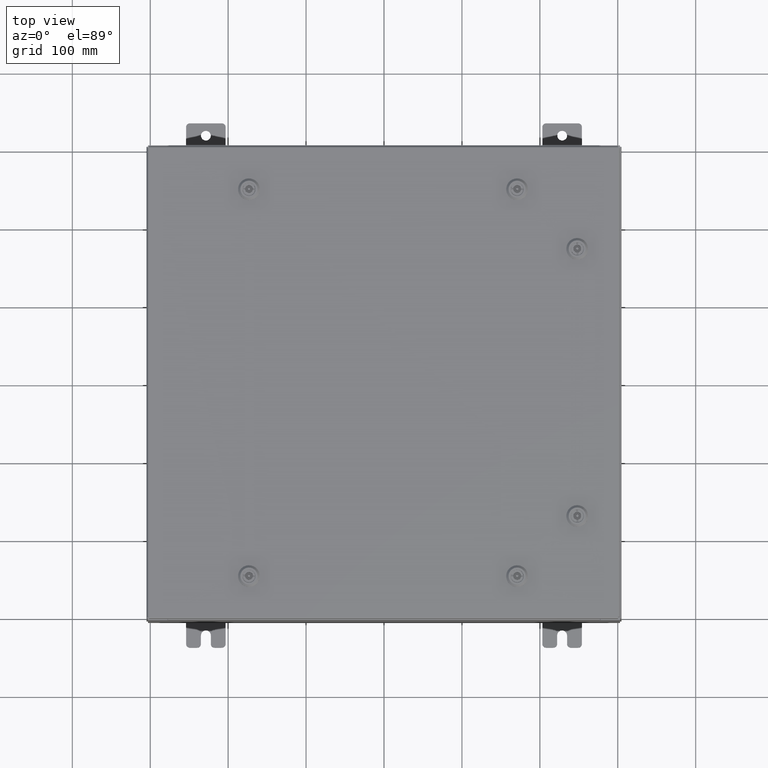
[diagram: clean part render]
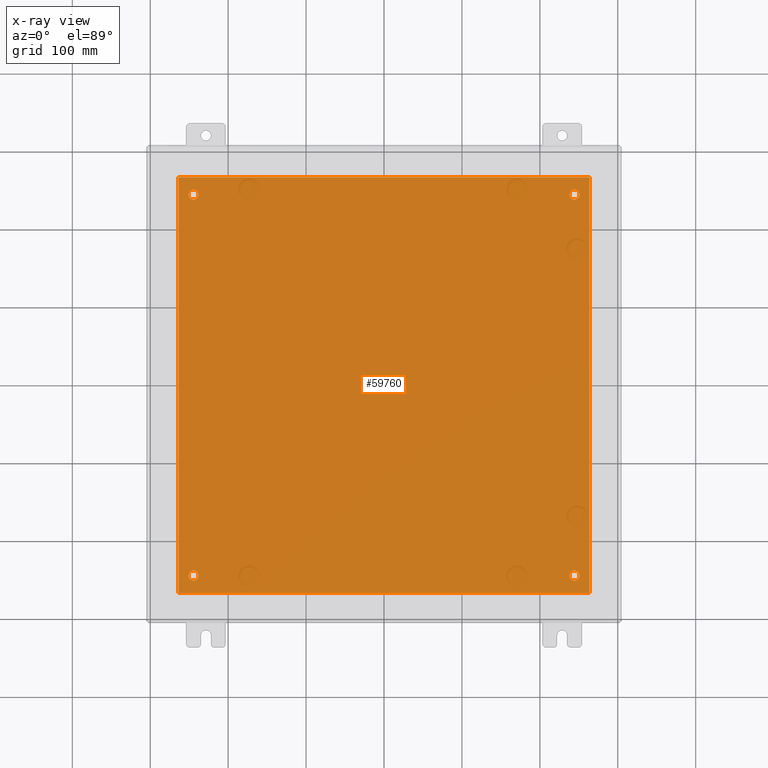
[diagram: x-ray — body ghosted, one internal face saturated and labeled with its STEP entity id]
A machine part, top view, then the same camera in x-ray: the body is ghosted and one INTERNAL B-rep face — a face not visible from any outside direction — is saturated and labeled: STEP entity #59760.
In plain terms, the highlighted planar face has unit normal (0, 0, -1).
Its self-contained STEP definition (entity closure, byte-faithful):
#550 = AXIS2_PLACEMENT_3D ( 'NONE', #13886, #22207, #44751 ) ;
#1883 = VECTOR ( 'NONE', #3053, 39.37007874015748100 ) ;
#1995 = VECTOR ( 'NONE', #28978, 39.37007874015748100 ) ;
#2280 = CARTESIAN_POINT ( 'NONE',  ( 9.625000000000005300, -9.625000000000001800, -0.1039999999999999800 ) ) ;
#2827 = VERTEX_POINT ( 'NONE', #28022 ) ;
#3053 = DIRECTION ( 'NONE',  ( -1.000000000000000000, -0.0000000000000000000, -0.0000000000000000000 ) ) ;
#3191 = CIRCLE ( 'NONE', #550, 0.2499999999999987000 ) ;
#3329 = CIRCLE ( 'NONE', #7143, 0.2499999999999976100 ) ;
#3527 = DIRECTION ( 'NONE',  ( 0.0000000000000000000, 0.0000000000000000000, -1.000000000000000000 ) ) ;
#4261 = EDGE_CURVE ( 'NONE', #62929, #2827, #59238, .T. ) ;
#5154 = ORIENTED_EDGE ( 'NONE', *, *, #36373, .F. ) ;
#6107 = EDGE_CURVE ( 'NONE', #2827, #62929, #3191, .T. ) ;
#6912 = VERTEX_POINT ( 'NONE', #55857 ) ;
#7143 = AXIS2_PLACEMENT_3D ( 'NONE', #15414, #49762, #20341 ) ;
#7188 = DIRECTION ( 'NONE',  ( -1.000000000000000000, 0.0000000000000000000, 0.0000000000000000000 ) ) ;
#8154 = VERTEX_POINT ( 'NONE', #35772 ) ;
#8735 = DIRECTION ( 'NONE',  ( -0.0000000000000000000, -0.0000000000000000000, 1.000000000000000000 ) ) ;
#9283 = EDGE_CURVE ( 'NONE', #45121, #58195, #62035, .T. ) ;
#9945 = CIRCLE ( 'NONE', #15931, 0.2499999999999976100 ) ;
#10018 = ORIENTED_EDGE ( 'NONE', *, *, #9283, .F. ) ;
#10970 = AXIS2_PLACEMENT_3D ( 'NONE', #32898, #3527, #37848 ) ;
#10999 = ORIENTED_EDGE ( 'NONE', *, *, #4261, .T. ) ;
#11457 = ORIENTED_EDGE ( 'NONE', *, *, #25957, .T. ) ;
#12638 = ORIENTED_EDGE ( 'NONE', *, *, #58303, .F. ) ;
#13877 = FACE_BOUND ( 'NONE', #25393, .T. ) ;
#13886 = CARTESIAN_POINT ( 'NONE',  ( -9.625000000000005300, 9.625000000000001800, -0.1039999999999999800 ) ) ;
#13932 = VERTEX_POINT ( 'NONE', #29585 ) ;
#14870 = LINE ( 'NONE', #47016, #1883 ) ;
#14983 = LINE ( 'NONE', #63258, #1995 ) ;
#15414 = CARTESIAN_POINT ( 'NONE',  ( 9.625000000000005300, -9.625000000000001800, -0.1039999999999999800 ) ) ;
#15931 = AXIS2_PLACEMENT_3D ( 'NONE', #2280, #36579, #7188 ) ;
#18669 = DIRECTION ( 'NONE',  ( -0.0000000000000000000, -0.0000000000000000000, 1.000000000000000000 ) ) ;
#18864 = EDGE_CURVE ( 'NONE', #39711, #50297, #60272, .T. ) ;
#18925 = DIRECTION ( 'NONE',  ( -0.0000000000000000000, -0.0000000000000000000, 1.000000000000000000 ) ) ;
#19144 = AXIS2_PLACEMENT_3D ( 'NONE', #19498, #53825, #24448 ) ;
#19498 = CARTESIAN_POINT ( 'NONE',  ( 9.625000000000005300, 9.625000000000001800, -0.1039999999999999800 ) ) ;
#20341 = DIRECTION ( 'NONE',  ( -1.000000000000000000, 0.0000000000000000000, 0.0000000000000000000 ) ) ;
#21442 = CIRCLE ( 'NONE', #19144, 0.2499999999999976100 ) ;
#22207 = DIRECTION ( 'NONE',  ( -0.0000000000000000000, -0.0000000000000000000, 1.000000000000000000 ) ) ;
#22558 = CARTESIAN_POINT ( 'NONE',  ( -9.875000000000005300, 9.625000000000001800, -0.1039999999999999800 ) ) ;
#22886 = VECTOR ( 'NONE', #57510, 39.37007874015748100 ) ;
#22966 = CARTESIAN_POINT ( 'NONE',  ( 10.38299999999999900, -10.50000000000000000, -0.1039999999999999800 ) ) ;
#23238 = EDGE_LOOP ( 'NONE', ( #33797, #60374 ) ) ;
#23818 = CARTESIAN_POINT ( 'NONE',  ( -10.38299999999999900, -10.50000000000000000, -0.1040000000000031300 ) ) ;
#24448 = DIRECTION ( 'NONE',  ( -1.000000000000000000, 0.0000000000000000000, 0.0000000000000000000 ) ) ;
#25158 = EDGE_LOOP ( 'NONE', ( #50316, #11457 ) ) ;
#25393 = EDGE_LOOP ( 'NONE', ( #45609, #57522 ) ) ;
#25419 = FACE_BOUND ( 'NONE', #25158, .T. ) ;
#25548 = CARTESIAN_POINT ( 'NONE',  ( -9.625000000000005300, -9.625000000000001800, -0.1039999999999999800 ) ) ;
#25957 = EDGE_CURVE ( 'NONE', #13932, #32105, #3329, .T. ) ;
#27313 = CARTESIAN_POINT ( 'NONE',  ( 9.875000000000003600, -9.625000000000001800, -0.1039999999999999800 ) ) ;
#27834 = VECTOR ( 'NONE', #40021, 39.37007874015748100 ) ;
#27963 = PLANE ( 'NONE',  #10970 ) ;
#28022 = CARTESIAN_POINT ( 'NONE',  ( -9.375000000000005300, 9.625000000000001800, -0.1039999999999999800 ) ) ;
#28615 = EDGE_LOOP ( 'NONE', ( #10018, #5154, #53222, #12638 ) ) ;
#28978 = DIRECTION ( 'NONE',  ( 0.0000000000000000000, -1.000000000000000000, 0.0000000000000000000 ) ) ;
#29368 = VERTEX_POINT ( 'NONE', #45787 ) ;
#29585 = CARTESIAN_POINT ( 'NONE',  ( 9.375000000000007100, -9.625000000000001800, -0.1039999999999999800 ) ) ;
#29890 = EDGE_CURVE ( 'NONE', #50297, #39711, #21442, .T. ) ;
#30475 = DIRECTION ( 'NONE',  ( -1.000000000000000000, 0.0000000000000000000, 0.0000000000000000000 ) ) ;
#32105 = VERTEX_POINT ( 'NONE', #27313 ) ;
#32209 = EDGE_LOOP ( 'NONE', ( #48144, #10999 ) ) ;
#32869 = CIRCLE ( 'NONE', #63581, 0.2499999999999987000 ) ;
#32885 = CARTESIAN_POINT ( 'NONE',  ( -10.50000000000000200, -10.50000000000000000, -0.1039999999999999800 ) ) ;
#32898 = CARTESIAN_POINT ( 'NONE',  ( 0.0000000000000000000, 0.0000000000000000000, -0.1039999999999999800 ) ) ;
#33797 = ORIENTED_EDGE ( 'NONE', *, *, #63361, .T. ) ;
#34899 = CARTESIAN_POINT ( 'NONE',  ( -9.625000000000005300, 9.625000000000001800, -0.1039999999999999800 ) ) ;
#35772 = CARTESIAN_POINT ( 'NONE',  ( 10.38300000000000100, 10.50000000000000200, -0.1039999999999999800 ) ) ;
#36373 = EDGE_CURVE ( 'NONE', #62946, #45121, #14983, .T. ) ;
#36579 = DIRECTION ( 'NONE',  ( -0.0000000000000000000, -0.0000000000000000000, 1.000000000000000000 ) ) ;
#36957 = AXIS2_PLACEMENT_3D ( 'NONE', #48337, #18925, #53239 ) ;
#37848 = DIRECTION ( 'NONE',  ( -1.000000000000000000, 0.0000000000000000000, -0.0000000000000000000 ) ) ;
#38149 = CARTESIAN_POINT ( 'NONE',  ( -9.625000000000005300, -9.625000000000001800, -0.1039999999999999800 ) ) ;
#38492 = FACE_BOUND ( 'NONE', #32209, .T. ) ;
#38890 = CIRCLE ( 'NONE', #47105, 0.2499999999999987000 ) ;
#39711 = VERTEX_POINT ( 'NONE', #59335 ) ;
#40021 = DIRECTION ( 'NONE',  ( 0.0000000000000000000, 1.000000000000000000, 0.0000000000000000000 ) ) ;
#40887 = LINE ( 'NONE', #58628, #27834 ) ;
#42349 = CARTESIAN_POINT ( 'NONE',  ( -10.38299999999999900, 10.50000000000000400, -0.1040000000000031300 ) ) ;
#43089 = DIRECTION ( 'NONE',  ( -1.000000000000000000, 0.0000000000000000000, 0.0000000000000000000 ) ) ;
#44144 = DIRECTION ( 'NONE',  ( -1.000000000000000000, 0.0000000000000000000, 0.0000000000000000000 ) ) ;
#44751 = DIRECTION ( 'NONE',  ( -1.000000000000000000, 0.0000000000000000000, 0.0000000000000000000 ) ) ;
#44935 = EDGE_CURVE ( 'NONE', #8154, #62946, #14870, .T. ) ;
#45121 = VERTEX_POINT ( 'NONE', #23818 ) ;
#45609 = ORIENTED_EDGE ( 'NONE', *, *, #29890, .T. ) ;
#45787 = CARTESIAN_POINT ( 'NONE',  ( -9.375000000000005300, -9.625000000000001800, -0.1039999999999999800 ) ) ;
#47016 = CARTESIAN_POINT ( 'NONE',  ( -10.50000000000000000, 10.50000000000000200, -0.1039999999999999800 ) ) ;
#47105 = AXIS2_PLACEMENT_3D ( 'NONE', #38149, #8735, #43089 ) ;
#48144 = ORIENTED_EDGE ( 'NONE', *, *, #6107, .T. ) ;
#48293 = CARTESIAN_POINT ( 'NONE',  ( 9.875000000000003600, 9.625000000000001800, -0.1039999999999999800 ) ) ;
#48337 = CARTESIAN_POINT ( 'NONE',  ( 9.625000000000005300, 9.625000000000001800, -0.1039999999999999800 ) ) ;
#49762 = DIRECTION ( 'NONE',  ( -0.0000000000000000000, -0.0000000000000000000, 1.000000000000000000 ) ) ;
#50297 = VERTEX_POINT ( 'NONE', #48293 ) ;
#50316 = ORIENTED_EDGE ( 'NONE', *, *, #61151, .T. ) ;
#51283 = EDGE_CURVE ( 'NONE', #6912, #29368, #38890, .T. ) ;
#51516 = FACE_BOUND ( 'NONE', #23238, .T. ) ;
#52656 = AXIS2_PLACEMENT_3D ( 'NONE', #34899, #18669, #44144 ) ;
#53012 = FACE_OUTER_BOUND ( 'NONE', #28615, .T. ) ;
#53222 = ORIENTED_EDGE ( 'NONE', *, *, #44935, .F. ) ;
#53239 = DIRECTION ( 'NONE',  ( -1.000000000000000000, 0.0000000000000000000, 0.0000000000000000000 ) ) ;
#53825 = DIRECTION ( 'NONE',  ( -0.0000000000000000000, -0.0000000000000000000, 1.000000000000000000 ) ) ;
#55857 = CARTESIAN_POINT ( 'NONE',  ( -9.875000000000005300, -9.625000000000001800, -0.1039999999999999800 ) ) ;
#57510 = DIRECTION ( 'NONE',  ( 1.000000000000000000, 0.0000000000000000000, 0.0000000000000000000 ) ) ;
#57522 = ORIENTED_EDGE ( 'NONE', *, *, #18864, .T. ) ;
#58195 = VERTEX_POINT ( 'NONE', #22966 ) ;
#58303 = EDGE_CURVE ( 'NONE', #58195, #8154, #40887, .T. ) ;
#58628 = CARTESIAN_POINT ( 'NONE',  ( 10.38300000000000100, -10.50000000000000200, -0.1040000000000009100 ) ) ;
#59238 = CIRCLE ( 'NONE', #52656, 0.2499999999999987000 ) ;
#59335 = CARTESIAN_POINT ( 'NONE',  ( 9.375000000000007100, 9.625000000000001800, -0.1039999999999999800 ) ) ;
#59760 = ADVANCED_FACE ( 'NONE', ( #51516, #25419, #13877, #38492, #53012 ), #27963, .T. ) ;
#59827 = DIRECTION ( 'NONE',  ( -0.0000000000000000000, -0.0000000000000000000, 1.000000000000000000 ) ) ;
#60272 = CIRCLE ( 'NONE', #36957, 0.2499999999999976100 ) ;
#60374 = ORIENTED_EDGE ( 'NONE', *, *, #51283, .T. ) ;
#61151 = EDGE_CURVE ( 'NONE', #32105, #13932, #9945, .T. ) ;
#62035 = LINE ( 'NONE', #32885, #22886 ) ;
#62929 = VERTEX_POINT ( 'NONE', #22558 ) ;
#62946 = VERTEX_POINT ( 'NONE', #42349 ) ;
#63258 = CARTESIAN_POINT ( 'NONE',  ( -10.38299999999999900, 10.50000000000000400, -0.1040000000000031300 ) ) ;
#63361 = EDGE_CURVE ( 'NONE', #29368, #6912, #32869, .T. ) ;
#63581 = AXIS2_PLACEMENT_3D ( 'NONE', #25548, #59827, #30475 ) ;